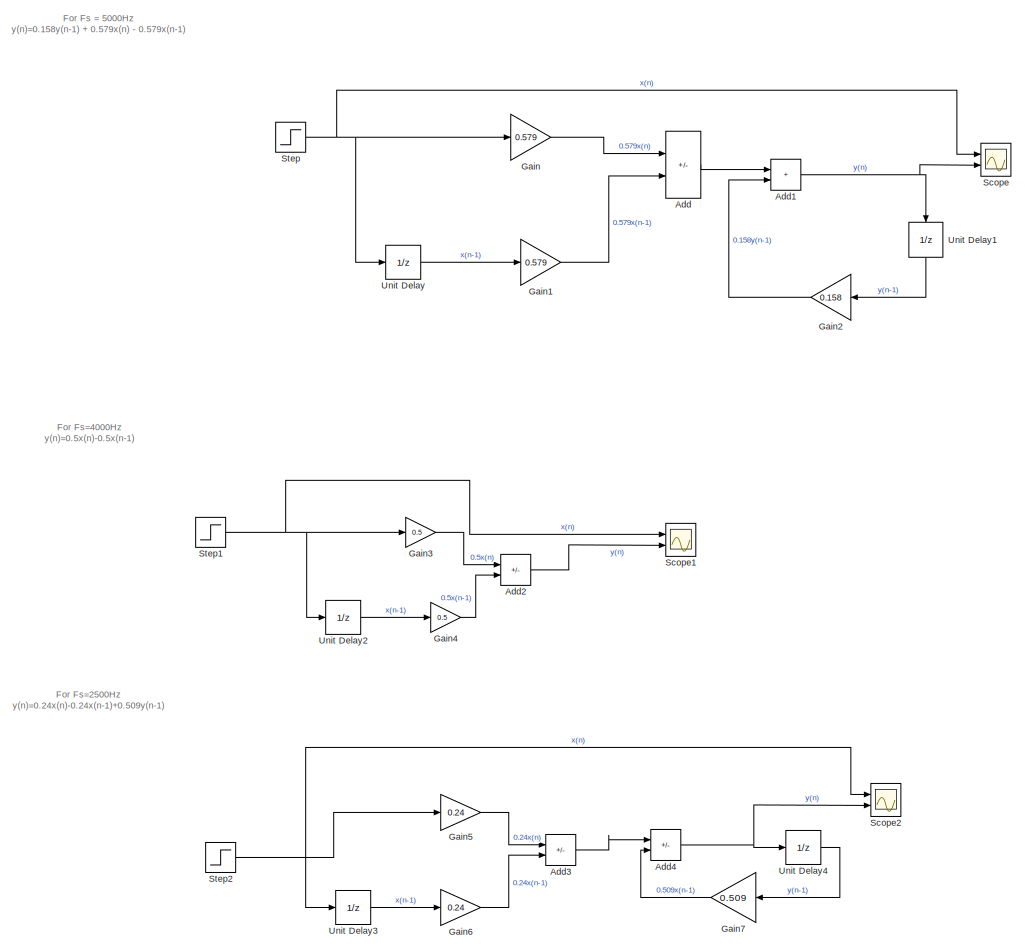
[diagram: root canvas - part 1/2, full width, top band]
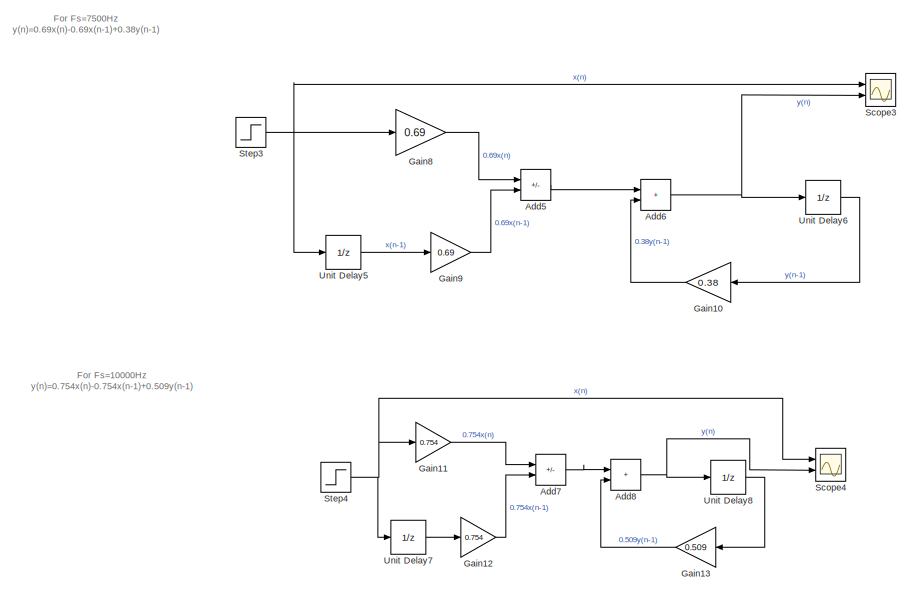
[diagram: root canvas - part 2/2, full width, bottom band]
MODEL slx_6b58d05a856d
KIND model
CONFIG AbsTol = auto
CONFIG EnableMultiTasking = off
CONFIG FixedStep = 1
CONFIG MaxStep = auto
CONFIG MinStep = auto
CONFIG RelTol = 1e-3
CONFIG SampleTimeConstraint = Unconstrained
CONFIG SolverName = VariableStepAuto
CONFIG StartTime = 0.0
CONFIG StopTime = 20
BLOCK [Sum] Add
  IconShape = rectangular
  Inputs = +-
  Ports = [2, 1]
BLOCK [Sum] Add1
  IconShape = rectangular
  Ports = [2, 1]
BLOCK [Sum] Add2
  IconShape = rectangular
  Inputs = +-
  Ports = [2, 1]
BLOCK [Sum] Add3
  IconShape = rectangular
  Inputs = +-
  Ports = [2, 1]
BLOCK [Sum] Add4
  IconShape = rectangular
  Inputs = +-
  Ports = [2, 1]
BLOCK [Sum] Add5
  IconShape = rectangular
  Inputs = +-
  Ports = [2, 1]
BLOCK [Sum] Add6
  IconShape = rectangular
  Ports = [2, 1]
BLOCK [Sum] Add7
  IconShape = rectangular
  Inputs = +-
  Ports = [2, 1]
BLOCK [Sum] Add8
  IconShape = rectangular
  Ports = [2, 1]
BLOCK [Gain] Gain
  Gain = 0.579
BLOCK [Gain] Gain1
  Gain = 0.579
BLOCK [Gain] Gain10
  Gain = 0.38
  NameLocation = top
BLOCK [Gain] Gain11
  Gain = 0.754
BLOCK [Gain] Gain12
  Gain = 0.754
BLOCK [Gain] Gain13
  Gain = 0.509
  NameLocation = top
BLOCK [Gain] Gain2
  Gain = 0.158
  NameLocation = top
BLOCK [Gain] Gain3
  Gain = 0.5
BLOCK [Gain] Gain4
  Gain = 0.5
BLOCK [Gain] Gain5
  Gain = 0.24
BLOCK [Gain] Gain6
  Gain = 0.24
BLOCK [Gain] Gain7
  Gain = 0.509
  NameLocation = top
BLOCK [Gain] Gain8
  Gain = 0.69
BLOCK [Gain] Gain9
  Gain = 0.69
BLOCK [Scope] Scope
  Floating = off
  NumInputPorts = 2
  Ports = [2]
  ScopeSpecificationString = Simulink.scopes.TimeScopeBlockCfg('CurrentConfiguration', extmgr.ConfigurationSet(extmgr.Configuration('Core','General UI',true),extmgr.Configuration('Core','Source UI',true),extmgr.Configuration('Sources','WiredSimulink',true),extmgr.Configuration('Visuals','Time Domain',true,'SerializedDisplays',{struct('MinYLimReal','-0.125','MaxYLimReal','1.125','YLabelReal','','MinYLimMag','0.00000','MaxYLimM...<+1957ch>
BLOCK [Scope] Scope1
  Floating = off
  NumInputPorts = 2
  Ports = [2]
  ScopeSpecificationString = Simulink.scopes.TimeScopeBlockCfg('CurrentConfiguration', extmgr.ConfigurationSet(extmgr.Configuration('Core','General UI',true),extmgr.Configuration('Core','Source UI',true),extmgr.Configuration('Sources','WiredSimulink',true,'DataLoggingVariableName','ScopeData1'),extmgr.Configuration('Visuals','Time Domain',true,'SerializedDisplays',{struct('MinYLimReal','-0.125','MaxYLimReal','1.125','YLabelRe...<+1358ch>
BLOCK [Scope] Scope2
  Floating = off
  NumInputPorts = 2
  Ports = [2]
  ScopeSpecificationString = Simulink.scopes.TimeScopeBlockCfg('CurrentConfiguration', extmgr.ConfigurationSet(extmgr.Configuration('Core','General UI',true),extmgr.Configuration('Core','Source UI',true),extmgr.Configuration('Sources','WiredSimulink',true,'DataLoggingVariableName','ScopeData1'),extmgr.Configuration('Visuals','Time Domain',true,'SerializedDisplays',{struct('MinYLimReal','-0.26243','MaxYLimReal','1.14027','YLab...<+1370ch>
BLOCK [Scope] Scope3
  Floating = off
  NumInputPorts = 2
  Ports = [2]
  ScopeSpecificationString = Simulink.scopes.TimeScopeBlockCfg('CurrentConfiguration', extmgr.ConfigurationSet(extmgr.Configuration('Core','General UI',true),extmgr.Configuration('Core','Source UI',true),extmgr.Configuration('Sources','WiredSimulink',true,'DataLoggingVariableName','ScopeData2'),extmgr.Configuration('Visuals','Time Domain',true,'SerializedDisplays',{struct('MinYLimReal','-0.125','MaxYLimReal','1.125','YLabelRe...<+1996ch>
BLOCK [Scope] Scope4
  Floating = off
  NumInputPorts = 2
  Ports = [2]
  ScopeSpecificationString = Simulink.scopes.TimeScopeBlockCfg('CurrentConfiguration', extmgr.ConfigurationSet(extmgr.Configuration('Core','General UI',true),extmgr.Configuration('Core','Source UI',true),extmgr.Configuration('Sources','WiredSimulink',true,'DataLoggingVariableName','ScopeData3'),extmgr.Configuration('Visuals','Time Domain',true,'SerializedDisplays',{struct('MinYLimReal','-0.125','MaxYLimReal','1.125','YLabelRe...<+2012ch>
BLOCK [Step] Step
  SampleTime = 0
BLOCK [Step] Step1
  SampleTime = 0
BLOCK [Step] Step2
  SampleTime = 0
BLOCK [Step] Step3
  SampleTime = 0
BLOCK [Step] Step4
  SampleTime = 0
BLOCK [UnitDelay] Unit Delay
  HasFrameUpgradeWarning = on
  SampleTime = -1
BLOCK [UnitDelay] Unit Delay1
  HasFrameUpgradeWarning = on
  NameLocation = left
  SampleTime = -1
BLOCK [UnitDelay] Unit Delay2
  HasFrameUpgradeWarning = on
  SampleTime = -1
BLOCK [UnitDelay] Unit Delay3
  HasFrameUpgradeWarning = on
  SampleTime = -1
BLOCK [UnitDelay] Unit Delay4
  HasFrameUpgradeWarning = on
  SampleTime = -1
BLOCK [UnitDelay] Unit Delay5
  HasFrameUpgradeWarning = on
  SampleTime = -1
BLOCK [UnitDelay] Unit Delay6
  HasFrameUpgradeWarning = on
  SampleTime = -1
BLOCK [UnitDelay] Unit Delay7
  HasFrameUpgradeWarning = on
  SampleTime = -1
BLOCK [UnitDelay] Unit Delay8
  HasFrameUpgradeWarning = on
  SampleTime = -1
ANNOTATION (root): For Fs = 5000Hz y(n)=0.158y(n-1) + 0.579x(n) - 0.579x(n-1)
ANNOTATION (root): For Fs=10000Hz y(n)=0.754x(n)-0.754x(n-1)+0.509y(n-1)
ANNOTATION (root): For Fs=2500Hz y(n)=0.24x(n)-0.24x(n-1)+0.509y(n-1)
ANNOTATION (root): For Fs=4000Hz y(n)=0.5x(n)-0.5x(n-1)
ANNOTATION (root): For Fs=7500Hz y(n)=0.69x(n)-0.69x(n-1)+0.38y(n-1)
NET Add1:1 -> Scope:2, Unit Delay1:1
LINE Add2:1 -> Scope1:2
LINE Add3:1 -> Add4:1
NET Add4:1 -> Scope2:2, Unit Delay4:1
LINE Add5:1 -> Add6:1
NET Add6:1 -> Scope3:2, Unit Delay6:1
LINE Add7:1 -> Add8:1
NET Add8:1 -> Scope4:2, Unit Delay8:1
LINE Add:1 -> Add1:1
LINE Gain10:1 -> Add6:2
LINE Gain11:1 -> Add7:1
LINE Gain12:1 -> Add7:2
LINE Gain13:1 -> Add8:2
LINE Gain1:1 -> Add:2
LINE Gain2:1 -> Add1:2
LINE Gain3:1 -> Add2:1
LINE Gain4:1 -> Add2:2
LINE Gain5:1 -> Add3:1
LINE Gain6:1 -> Add3:2
LINE Gain7:1 -> Add4:2
LINE Gain8:1 -> Add5:1
LINE Gain9:1 -> Add5:2
LINE Gain:1 -> Add:1
NET Step1:1 -> Gain3:1, Scope1:1, Unit Delay2:1
NET Step2:1 -> Gain5:1, Scope2:1, Unit Delay3:1
NET Step3:1 -> Gain8:1, Scope3:1, Unit Delay5:1
NET Step4:1 -> Gain11:1, Scope4:1, Unit Delay7:1
NET Step:1 -> Gain:1, Scope:1, Unit Delay:1
LINE Unit Delay1:1 -> Gain2:1
LINE Unit Delay2:1 -> Gain4:1
LINE Unit Delay3:1 -> Gain6:1
LINE Unit Delay4:1 -> Gain7:1
LINE Unit Delay5:1 -> Gain9:1
LINE Unit Delay6:1 -> Gain10:1
LINE Unit Delay7:1 -> Gain12:1
LINE Unit Delay8:1 -> Gain13:1
LINE Unit Delay:1 -> Gain1:1
note: NET lines group one-source signal fan-out (src -> all destinations, sorted); 1:1 wires keep LINE
